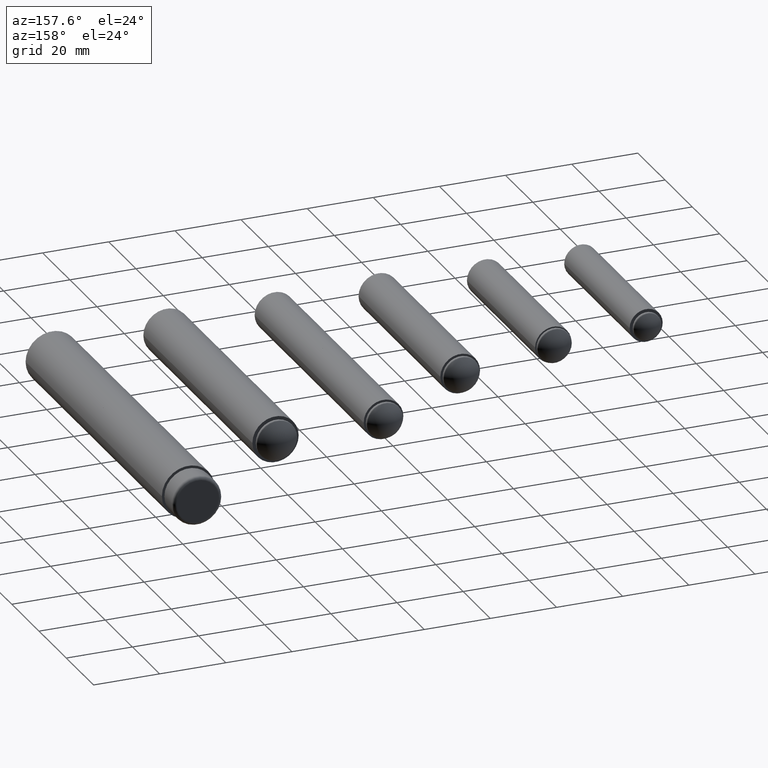
[diagram: clean part render]
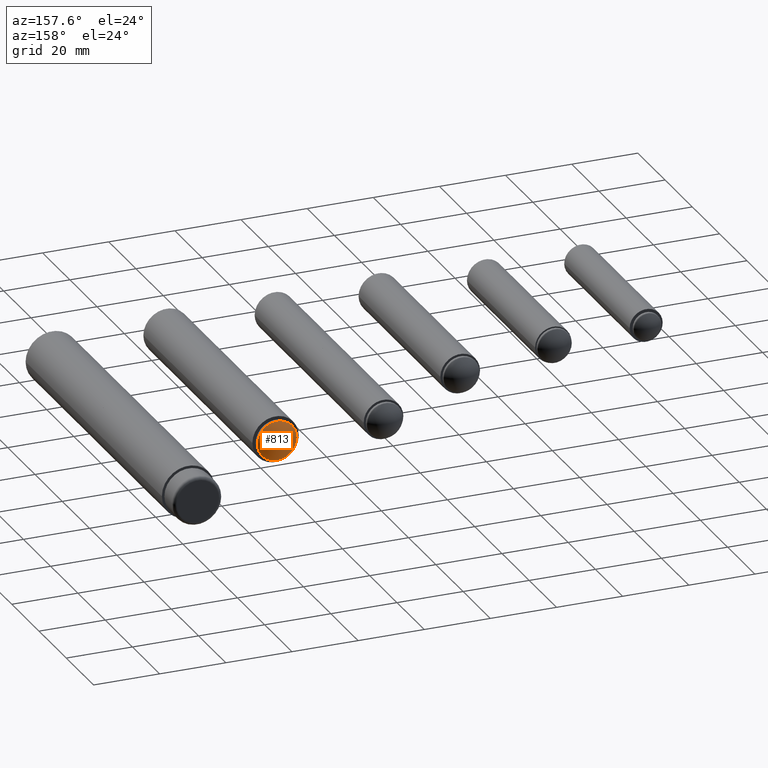
[diagram: same view with one face highlighted and labeled with its STEP entity id]
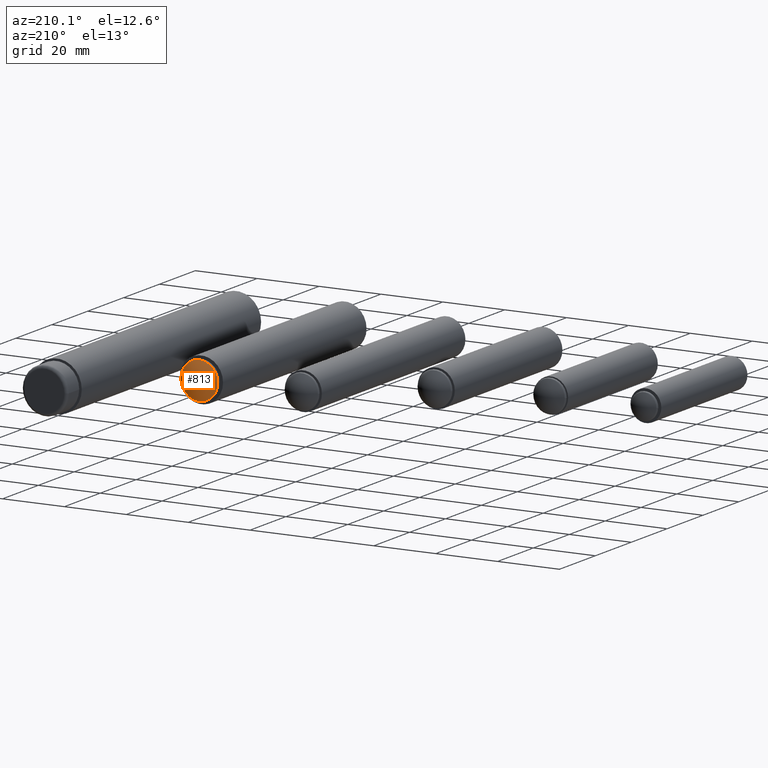
[diagram: same view with one face highlighted and labeled with its STEP entity id]
A machine part, auxiliary view. The second image highlights one B-rep face of the part: STEP entity #813.
A second angle (auxiliary view) of the same face is appended — the face is thin or edge-on in the first view.
In plain terms, the highlighted spherical surface has radius 8.8145 mm.
Its self-contained STEP definition (entity closure, byte-faithful):
#111=SPHERICAL_SURFACE('',#966,8.81449999999999);
#303=FACE_OUTER_BOUND('',#413,.T.);
#413=EDGE_LOOP('',(#713));
#485=CIRCLE('',#965,5.9897678753984);
#545=VERTEX_POINT('',#1520);
#605=EDGE_CURVE('',#545,#545,#485,.T.);
#713=ORIENTED_EDGE('',*,*,#605,.F.);
#813=ADVANCED_FACE('',(#303),#111,.T.);
#965=AXIS2_PLACEMENT_3D('',#1521,#1260,#1261);
#966=AXIS2_PLACEMENT_3D('',#1522,#1262,#1263);
#1260=DIRECTION('center_axis',(4.10526254053798E-16,-1.,0.));
#1261=DIRECTION('ref_axis',(1.,4.11820532508315E-16,0.));
#1262=DIRECTION('center_axis',(6.12323399573676E-17,0.,1.));
#1263=DIRECTION('ref_axis',(1.,0.,0.));
#1520=CARTESIAN_POINT('',(-5.9897678753984,1.15219088861107,-7.3353500562423E-16));
#1521=CARTESIAN_POINT('Origin',(-1.44501449694128E-16,1.15219088861107,
0.));
#1522=CARTESIAN_POINT('Origin',(-3.28093726651823E-15,-5.31449999999998,
0.));